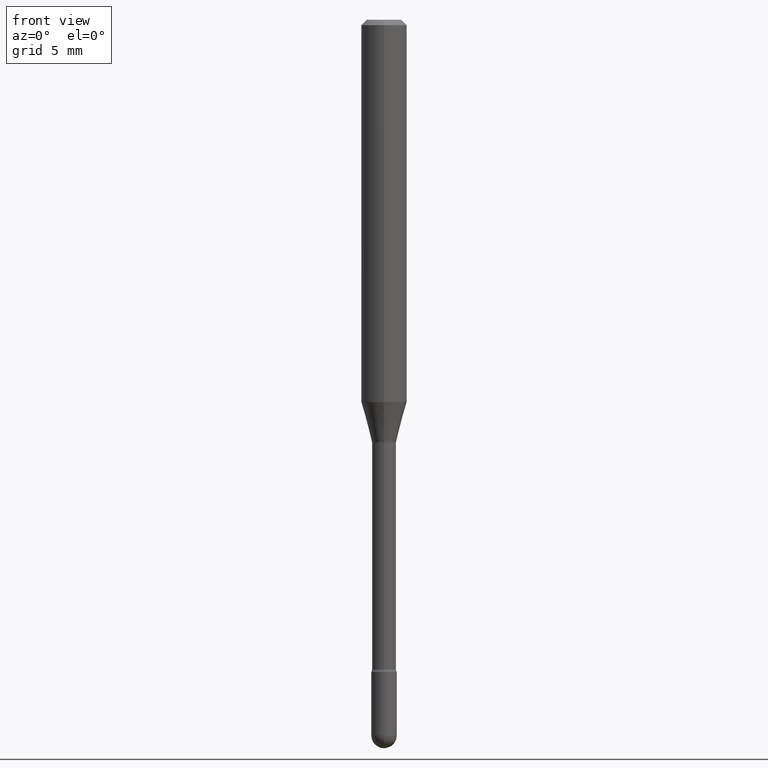
[diagram: clean part render]
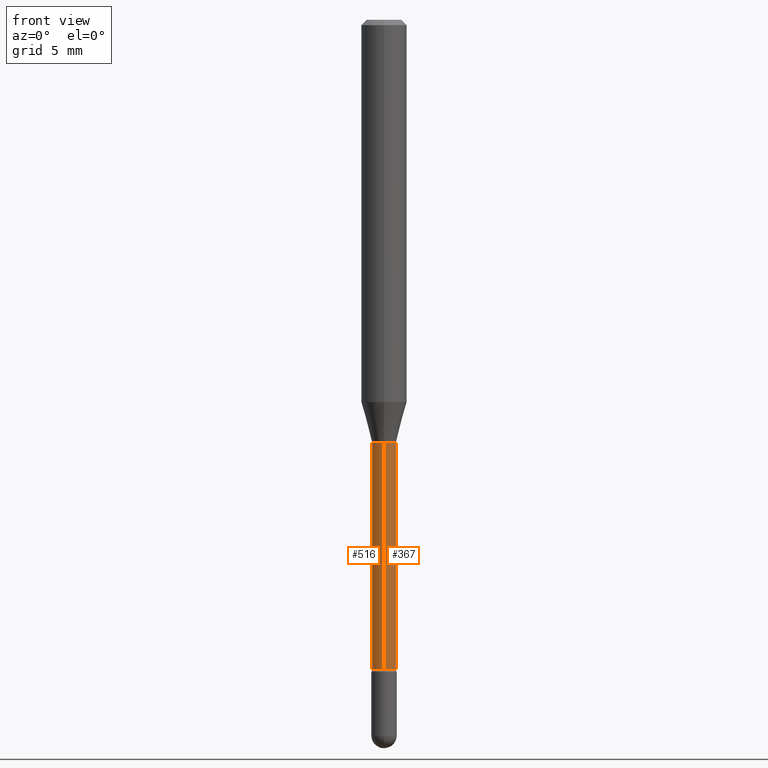
[diagram: same view with one multi-face feature highlighted, each face labeled with its STEP entity id]
A machine part, front view. The highlighted faces form ONE feature: a constant-radius fillet chain: 2 tangent blend faces with common blend radius 0.8357 mm. The faces share edges in the B-rep.
Their STEP definitions:
[1] entity #367 (Cylinder):
#20 = DIRECTION ( 'NONE',  ( -6.982962677686265922E-15, -1.000000000000000000, 3.491462374089928749E-15 ) ) ;
#37 = DIRECTION ( 'NONE',  ( -2.445482049201527511E-29, 3.491462374089927960E-15, 1.000000000000000000 ) ) ;
#53 = VECTOR ( 'NONE', #393, 39.37007874015748143 ) ;
#67 = CARTESIAN_POINT ( 'NONE',  ( -1.169113584055446105E-44, 1.669184350826100908E-30, 4.780733988912460139E-16 ) ) ;
#88 = VERTEX_POINT ( 'NONE', #312 ) ;
#101 = CYLINDRICAL_SURFACE ( 'NONE', #421, 0.03289999999999999175 ) ;
#132 = DIRECTION ( 'NONE',  ( -6.982962677686265922E-15, -1.000000000000000000, 0.000000000000000000 ) ) ;
#142 = CARTESIAN_POINT ( 'NONE',  ( 4.358694144612139545E-29, -6.222992563387760895E-15, -1.782345589506695971 ) ) ;
#191 = CARTESIAN_POINT ( 'NONE',  ( -2.297394720958781034E-16, -0.03289999999999999175, 5.929425109988046671E-16 ) ) ;
#201 = CIRCLE ( 'NONE', #507, 0.03289999999999998481 ) ;
#213 = CARTESIAN_POINT ( 'NONE',  ( -2.297394720958497537E-16, -0.03290000000000405794, -1.161974787463810443 ) ) ;
#234 = CARTESIAN_POINT ( 'NONE',  ( 2.337685600650729025E-16, 0.03289999999999999175, 3.632042867836874593E-16 ) ) ;
#249 = VERTEX_POINT ( 'NONE', #213 ) ;
#275 = EDGE_LOOP ( 'NONE', ( #553, #378, #431, #540 ) ) ;
#276 = LINE ( 'NONE', #234, #508 ) ;
#302 = EDGE_CURVE ( 'NONE', #470, #249, #529, .T. ) ;
#312 = CARTESIAN_POINT ( 'NONE',  ( 2.337685600651166843E-16, 0.03289999999999595331, -1.161974787463810888 ) ) ;
#314 = CARTESIAN_POINT ( 'NONE',  ( 2.412292587905979007E-16, 0.03289999999999376062, -1.782345589506695971 ) ) ;
#315 = EDGE_CURVE ( 'NONE', #470, #519, #201, .T. ) ;
#340 = AXIS2_PLACEMENT_3D ( 'NONE', #551, #506, #510 ) ;
#367 = ADVANCED_FACE ( 'NONE', ( #484 ), #101, .T. ) ;
#378 = ORIENTED_EDGE ( 'NONE', *, *, #503, .T. ) ;
#392 = EDGE_CURVE ( 'NONE', #249, #88, #557, .T. ) ;
#393 = DIRECTION ( 'NONE',  ( -2.445482049201527511E-29, 3.491462374089927960E-15, 1.000000000000000000 ) ) ;
#401 = DIRECTION ( 'NONE',  ( -2.445482049201527511E-29, 3.491462374089927960E-15, 1.000000000000000000 ) ) ;
#421 = AXIS2_PLACEMENT_3D ( 'NONE', #67, #500, #20 ) ;
#431 = ORIENTED_EDGE ( 'NONE', *, *, #392, .F. ) ;
#470 = VERTEX_POINT ( 'NONE', #563 ) ;
#484 = FACE_OUTER_BOUND ( 'NONE', #275, .T. ) ;
#500 = DIRECTION ( 'NONE',  ( -2.445482049201527511E-29, 3.491462374089927960E-15, 1.000000000000000000 ) ) ;
#503 = EDGE_CURVE ( 'NONE', #519, #88, #276, .T. ) ;
#506 = DIRECTION ( 'NONE',  ( -2.445482049201527511E-29, 3.491462374089927960E-15, 1.000000000000000000 ) ) ;
#507 = AXIS2_PLACEMENT_3D ( 'NONE', #142, #37, #132 ) ;
#508 = VECTOR ( 'NONE', #401, 39.37007874015748143 ) ;
#510 = DIRECTION ( 'NONE',  ( -6.982962677686266711E-15, -1.000000000000000000, 4.151744671222284594E-15 ) ) ;
#519 = VERTEX_POINT ( 'NONE', #314 ) ;
#529 = LINE ( 'NONE', #191, #53 ) ;
#540 = ORIENTED_EDGE ( 'NONE', *, *, #302, .F. ) ;
#551 = CARTESIAN_POINT ( 'NONE',  ( 2.841588484367509022E-29, -4.056991250071036384E-15, -1.161974787463810665 ) ) ;
#553 = ORIENTED_EDGE ( 'NONE', *, *, #315, .T. ) ;
#557 = CIRCLE ( 'NONE', #340, 0.03289999999999999869 ) ;
#563 = CARTESIAN_POINT ( 'NONE',  ( -2.297394720958344695E-16, -0.03290000000000620900, -1.782345589506695971 ) ) ;
[2] entity #516 (Cylinder):
#15 = AXIS2_PLACEMENT_3D ( 'NONE', #399, #351, #526 ) ;
#53 = VECTOR ( 'NONE', #393, 39.37007874015748143 ) ;
#88 = VERTEX_POINT ( 'NONE', #312 ) ;
#89 = DIRECTION ( 'NONE',  ( -6.982962677686266711E-15, -1.000000000000000000, 4.151744671222284594E-15 ) ) ;
#140 = AXIS2_PLACEMENT_3D ( 'NONE', #438, #560, #184 ) ;
#149 = EDGE_CURVE ( 'NONE', #88, #249, #222, .T. ) ;
#160 = ORIENTED_EDGE ( 'NONE', *, *, #323, .T. ) ;
#184 = DIRECTION ( 'NONE',  ( -6.982962677686265922E-15, -1.000000000000000000, 0.000000000000000000 ) ) ;
#187 = ORIENTED_EDGE ( 'NONE', *, *, #149, .F. ) ;
#191 = CARTESIAN_POINT ( 'NONE',  ( -2.297394720958781034E-16, -0.03289999999999999175, 5.929425109988046671E-16 ) ) ;
#198 = CYLINDRICAL_SURFACE ( 'NONE', #15, 0.03289999999999999175 ) ;
#213 = CARTESIAN_POINT ( 'NONE',  ( -2.297394720958497537E-16, -0.03290000000000405794, -1.161974787463810443 ) ) ;
#222 = CIRCLE ( 'NONE', #309, 0.03289999999999999869 ) ;
#234 = CARTESIAN_POINT ( 'NONE',  ( 2.337685600650729025E-16, 0.03289999999999999175, 3.632042867836874593E-16 ) ) ;
#249 = VERTEX_POINT ( 'NONE', #213 ) ;
#276 = LINE ( 'NONE', #234, #508 ) ;
#302 = EDGE_CURVE ( 'NONE', #470, #249, #529, .T. ) ;
#309 = AXIS2_PLACEMENT_3D ( 'NONE', #466, #559, #89 ) ;
#312 = CARTESIAN_POINT ( 'NONE',  ( 2.337685600651166843E-16, 0.03289999999999595331, -1.161974787463810888 ) ) ;
#314 = CARTESIAN_POINT ( 'NONE',  ( 2.412292587905979007E-16, 0.03289999999999376062, -1.782345589506695971 ) ) ;
#323 = EDGE_CURVE ( 'NONE', #519, #470, #339, .T. ) ;
#339 = CIRCLE ( 'NONE', #140, 0.03289999999999998481 ) ;
#351 = DIRECTION ( 'NONE',  ( -2.445482049201527511E-29, 3.491462374089927960E-15, 1.000000000000000000 ) ) ;
#365 = EDGE_LOOP ( 'NONE', ( #409, #160, #492, #187 ) ) ;
#393 = DIRECTION ( 'NONE',  ( -2.445482049201527511E-29, 3.491462374089927960E-15, 1.000000000000000000 ) ) ;
#399 = CARTESIAN_POINT ( 'NONE',  ( -1.169113584055446105E-44, 1.669184350826100908E-30, 4.780733988912460139E-16 ) ) ;
#401 = DIRECTION ( 'NONE',  ( -2.445482049201527511E-29, 3.491462374089927960E-15, 1.000000000000000000 ) ) ;
#409 = ORIENTED_EDGE ( 'NONE', *, *, #503, .F. ) ;
#438 = CARTESIAN_POINT ( 'NONE',  ( 4.358694144612139545E-29, -6.222992563387760895E-15, -1.782345589506695971 ) ) ;
#466 = CARTESIAN_POINT ( 'NONE',  ( 2.841588484367509022E-29, -4.056991250071036384E-15, -1.161974787463810665 ) ) ;
#470 = VERTEX_POINT ( 'NONE', #563 ) ;
#480 = FACE_OUTER_BOUND ( 'NONE', #365, .T. ) ;
#492 = ORIENTED_EDGE ( 'NONE', *, *, #302, .T. ) ;
#503 = EDGE_CURVE ( 'NONE', #519, #88, #276, .T. ) ;
#508 = VECTOR ( 'NONE', #401, 39.37007874015748143 ) ;
#516 = ADVANCED_FACE ( 'NONE', ( #480 ), #198, .T. ) ;
#519 = VERTEX_POINT ( 'NONE', #314 ) ;
#526 = DIRECTION ( 'NONE',  ( -6.982962677686265922E-15, -1.000000000000000000, 3.491462374089928749E-15 ) ) ;
#529 = LINE ( 'NONE', #191, #53 ) ;
#559 = DIRECTION ( 'NONE',  ( -2.445482049201527511E-29, 3.491462374089927960E-15, 1.000000000000000000 ) ) ;
#560 = DIRECTION ( 'NONE',  ( -2.445482049201527511E-29, 3.491462374089927960E-15, 1.000000000000000000 ) ) ;
#563 = CARTESIAN_POINT ( 'NONE',  ( -2.297394720958344695E-16, -0.03290000000000620900, -1.782345589506695971 ) ) ;